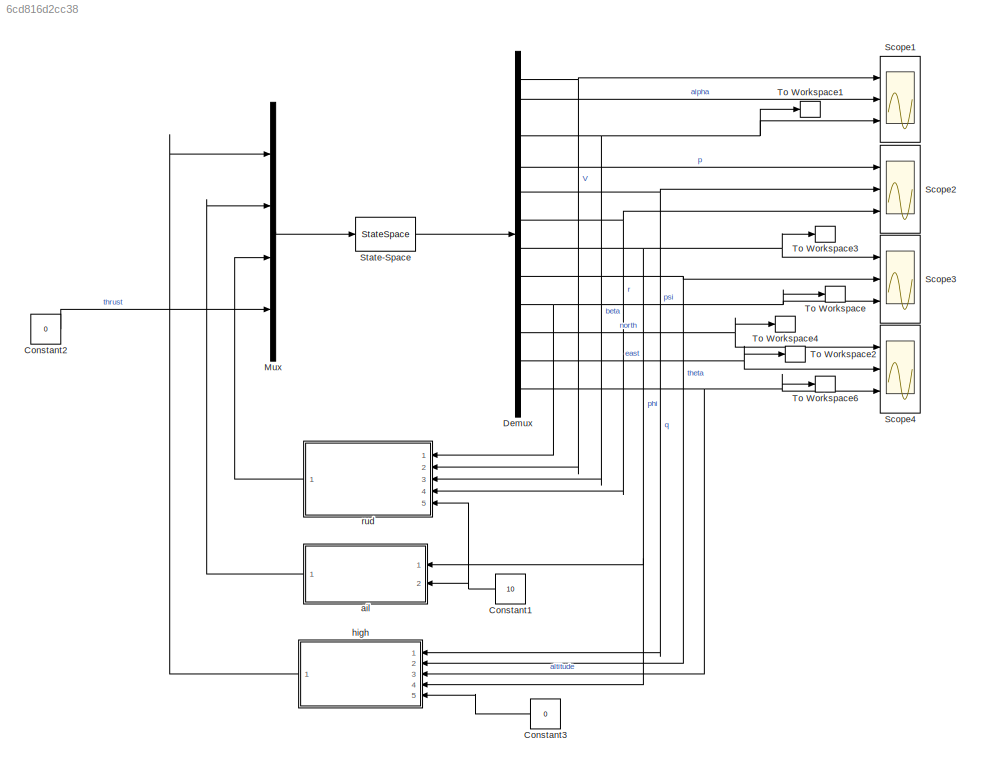
MODEL slx_6cd816d2cc38
KIND model
CONFIG AbsTol = auto
CONFIG FixedStep = auto
CONFIG MaxStep = auto
CONFIG MinStep = auto
CONFIG RelTol = 1e-3
CONFIG SampleTimeConstraint = Unconstrained
CONFIG Solver = VariableStepAuto
CONFIG SolverMode = Auto
CONFIG SolverName = VariableStepAuto
CONFIG StartTime = 0.0
CONFIG StopTime = 2000
BLOCK [Constant] Constant1
  Value = 10
BLOCK [Constant] Constant2
  Value = 0
BLOCK [Constant] Constant3
  Value = 0
BLOCK [Demux] Demux
  DisplayOption = bar
  Outputs = 12
  Ports = [1, 12]
BLOCK [Mux] Mux
  DisplayOption = bar
  Ports = [4, 1]
BLOCK [Scope] Scope1
  NumInputPorts = 3
  Ports = [3]
  ScopeSpecificationString = Simulink.scopes.TimeScopeBlockCfg('CurrentConfiguration', extmgr.ConfigurationSet(extmgr.Configuration('Core','General UI',true),extmgr.Configuration('Core','Source UI',true),extmgr.Configuration('Sources','WiredSimulink',true,'DataLoggingVariableName','yy','DataLoggingSaveFormat','Array','DataLoggingDecimation','1','DataLoggingDecimateData',true),extmgr.Configuration('Visuals','Time Domain',true,...<+2994ch>
BLOCK [Scope] Scope2
  NumInputPorts = 3
  Ports = [3]
  ScopeSpecificationString = Simulink.scopes.TimeScopeBlockCfg('CurrentConfiguration', extmgr.ConfigurationSet(extmgr.Configuration('Core','General UI',true),extmgr.Configuration('Core','Source UI',true),extmgr.Configuration('Sources','WiredSimulink',true,'DataLoggingVariableName','ScopeData2','DataLoggingSaveFormat','StructureWithTime','DataLoggingDecimation','1','DataLoggingDecimateData',true),extmgr.Configuration('Visuals'...<+3049ch>
BLOCK [Scope] Scope3
  NumInputPorts = 3
  Ports = [3]
  ScopeSpecificationString = Simulink.scopes.TimeScopeBlockCfg('CurrentConfiguration', extmgr.ConfigurationSet(extmgr.Configuration('Core','General UI',true),extmgr.Configuration('Core','Source UI',true),extmgr.Configuration('Sources','WiredSimulink',true,'DataLoggingSaveFormat','StructureWithTime','DataLoggingDecimation','1','DataLoggingDecimateData',true),extmgr.Configuration('Visuals','Time Domain',true,'SerializedDisplays...<+3078ch>
BLOCK [Scope] Scope4
  NumInputPorts = 3
  Ports = [3]
  ScopeSpecificationString = Simulink.scopes.TimeScopeBlockCfg('CurrentConfiguration', extmgr.ConfigurationSet(extmgr.Configuration('Core','General UI',true),extmgr.Configuration('Core','Source UI',true),extmgr.Configuration('Sources','WiredSimulink',true,'DataLoggingVariableName','ScopeData1','DataLoggingSaveFormat','StructureWithTime','DataLoggingDecimation','1','DataLoggingDecimateData',true),extmgr.Configuration('Visuals'...<+3113ch>
BLOCK [StateSpace] State-Space
  A = A
  B = B
  C = C
  D = D
  Ports = [1, 1]
  X0 = [20 0 0 0 0 0 0 0 0 0 0 0]
BLOCK [ToWorkspace] To Workspace
  FixptAsFi = on
  MaxDataPoints = inf
  Ports = [1]
  SampleTime = -1
  Save2DSignal = 3-D array (concatenate along third dimension)
  SaveFormat = Timeseries
  VariableName = psi
BLOCK [ToWorkspace] To Workspace1
  FixptAsFi = on
  MaxDataPoints = inf
  Ports = [1]
  SampleTime = -1
  Save2DSignal = 3-D array (concatenate along third dimension)
  SaveFormat = Timeseries
  VariableName = beta
BLOCK [ToWorkspace] To Workspace2
  FixptAsFi = on
  MaxDataPoints = inf
  Ports = [1]
  SampleTime = -1
  Save2DSignal = 3-D array (concatenate along third dimension)
  VariableName = east
BLOCK [ToWorkspace] To Workspace3
  FixptAsFi = on
  MaxDataPoints = inf
  Ports = [1]
  SampleTime = -1
  Save2DSignal = 3-D array (concatenate along third dimension)
  SaveFormat = Timeseries
  VariableName = phi
BLOCK [ToWorkspace] To Workspace4
  FixptAsFi = on
  MaxDataPoints = inf
  Ports = [1]
  SampleTime = -1
  Save2DSignal = 3-D array (concatenate along third dimension)
  VariableName = north
BLOCK [ToWorkspace] To Workspace6
  FixptAsFi = on
  MaxDataPoints = inf
  Ports = [1]
  SampleTime = -1
  Save2DSignal = 3-D array (concatenate along third dimension)
  SaveFormat = Timeseries
  VariableName = altitude
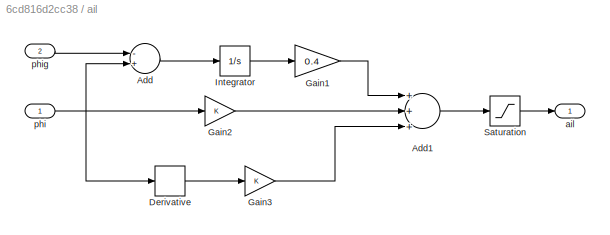
BLOCK [SubSystem] ail
  Ports = [2, 1]
  RequestExecContextInheritance = off
  Variant = off
BLOCK [Sum] ail/Add
  InputSameDT = off
  Inputs = -+
  OutDataTypeStr = Inherit: Inherit via internal rule
  Ports = [2, 1]
  SaturateOnIntegerOverflow = off
BLOCK [Sum] ail/Add1
  InputSameDT = off
  Inputs = +++
  OutDataTypeStr = Inherit: Inherit via internal rule
  Ports = [3, 1]
  SaturateOnIntegerOverflow = off
BLOCK [Derivative] ail/Derivative
BLOCK [Gain] ail/Gain1
  Gain = 0.4
  OutDataTypeStr = Inherit: Inherit via internal rule
  ParamDataTypeStr = Inherit: Inherit via internal rule
  SaturateOnIntegerOverflow = off
BLOCK [Gain] ail/Gain2
  OutDataTypeStr = Inherit: Inherit via internal rule
  ParamDataTypeStr = Inherit: Inherit via internal rule
  SaturateOnIntegerOverflow = off
BLOCK [Gain] ail/Gain3
  OutDataTypeStr = Inherit: Inherit via internal rule
  ParamDataTypeStr = Inherit: Inherit via internal rule
  SaturateOnIntegerOverflow = off
BLOCK [Integrator] ail/Integrator
  Ports = [1, 1]
BLOCK [Saturate] ail/Saturation
  InputPortMap = u0
  LowerLimit = -12
  Ports = [1, 1]
  UpperLimit = 12
BLOCK [Outport] ail/ail
  IconDisplay = Port number
BLOCK [Inport] ail/phi
  IconDisplay = Port number
BLOCK [Inport] ail/phig
  IconDisplay = Port number
  Port = 2
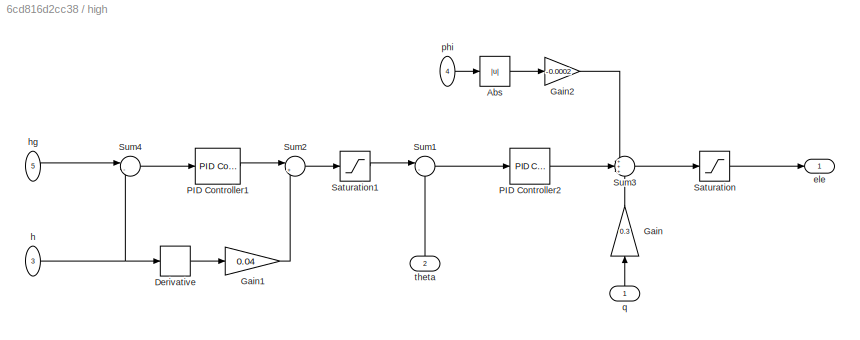
BLOCK [SubSystem] high 
  Ports = [5, 1]
  RequestExecContextInheritance = off
  Variant = off
BLOCK [Abs] high /Abs
  SaturateOnIntegerOverflow = off
BLOCK [Derivative] high /Derivative
BLOCK [Gain] high /Gain
  Gain = 0.3
  OutDataTypeStr = Inherit: Inherit via internal rule
  ParamDataTypeStr = Inherit: Inherit via internal rule
  SaturateOnIntegerOverflow = off
BLOCK [Gain] high /Gain1
  Gain = 0.04
  OutDataTypeStr = Inherit: Inherit via internal rule
  ParamDataTypeStr = Inherit: Inherit via internal rule
  SaturateOnIntegerOverflow = off
BLOCK [Gain] high /Gain2
  Gain = -0.0002
  OutDataTypeStr = Inherit: Inherit via internal rule
  ParamDataTypeStr = Inherit: Inherit via internal rule
  SaturateOnIntegerOverflow = off
BLOCK [Reference] high /PID Controller1  REF=simulink/Continuous/PID Controller
  Ports = [1, 1]
  SourceBlock = simulink/Continuous/PID Controller
  SourceType = PID 1dof
BLOCK [Reference] high /PID Controller2  REF=simulink/Continuous/PID Controller
  Ports = [1, 1]
  SourceBlock = simulink/Continuous/PID Controller
  SourceType = PID 1dof
BLOCK [Saturate] high /Saturation
  InputPortMap = u0
  LowerLimit = -9
  Ports = [1, 1]
  UpperLimit = 9
BLOCK [Saturate] high /Saturation1
  InputPortMap = u0
  LowerLimit = -15
  Ports = [1, 1]
  UpperLimit = 15
BLOCK [Sum] high /Sum1
  IconShape = round
  InputSameDT = off
  Inputs = |-+
  OutDataTypeStr = Inherit: Inherit via internal rule
  Ports = [2, 1]
  SaturateOnIntegerOverflow = off
BLOCK [Sum] high /Sum2
  IconShape = round
  InputSameDT = off
  Inputs = |++
  OutDataTypeStr = Inherit: Inherit via internal rule
  Ports = [2, 1]
  SaturateOnIntegerOverflow = off
BLOCK [Sum] high /Sum3
  IconShape = round
  InputSameDT = off
  Inputs = +++
  OutDataTypeStr = Inherit: Inherit via internal rule
  Ports = [3, 1]
  SaturateOnIntegerOverflow = off
BLOCK [Sum] high /Sum4
  IconShape = round
  InputSameDT = off
  Inputs = |-+
  OutDataTypeStr = Inherit: Inherit via internal rule
  Ports = [2, 1]
  SaturateOnIntegerOverflow = off
BLOCK [Outport] high /ele
  IconDisplay = Port number
BLOCK [Inport] high /h
  IconDisplay = Port number
  Port = 3
BLOCK [Inport] high /hg
  IconDisplay = Port number
  Port = 5
BLOCK [Inport] high /phi
  IconDisplay = Port number
  Port = 4
BLOCK [Inport] high /q
  IconDisplay = Port number
BLOCK [Inport] high /theta
  IconDisplay = Port number
  Port = 2
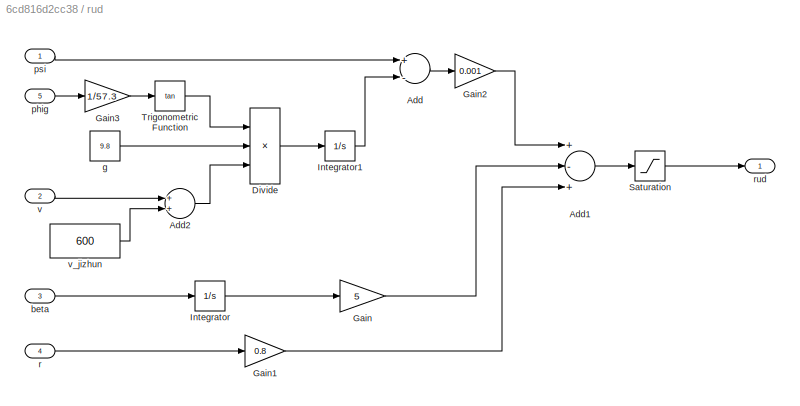
BLOCK [SubSystem] rud
  Ports = [5, 1]
  RequestExecContextInheritance = off
  Variant = off
BLOCK [Sum] rud/Add
  InputSameDT = off
  Inputs = +-
  OutDataTypeStr = Inherit: Inherit via internal rule
  Ports = [2, 1]
  SaturateOnIntegerOverflow = off
BLOCK [Sum] rud/Add1
  InputSameDT = off
  Inputs = +-+
  OutDataTypeStr = Inherit: Inherit via internal rule
  Ports = [3, 1]
  SaturateOnIntegerOverflow = off
BLOCK [Sum] rud/Add2
  InputSameDT = off
  OutDataTypeStr = Inherit: Inherit via internal rule
  Ports = [2, 1]
  SaturateOnIntegerOverflow = off
BLOCK [Product] rud/Divide
  InputSameDT = off
  Inputs = **/
  OutDataTypeStr = Inherit: Inherit via internal rule
  Ports = [3, 1]
  RndMeth = Floor
  SaturateOnIntegerOverflow = off
BLOCK [Gain] rud/Gain
  Gain = 5
  OutDataTypeStr = Inherit: Inherit via internal rule
  ParamDataTypeStr = Inherit: Inherit via internal rule
  SaturateOnIntegerOverflow = off
BLOCK [Gain] rud/Gain1
  Gain = 0.8
  OutDataTypeStr = Inherit: Inherit via internal rule
  ParamDataTypeStr = Inherit: Inherit via internal rule
  SaturateOnIntegerOverflow = off
BLOCK [Gain] rud/Gain2
  Gain = 0.001
  OutDataTypeStr = Inherit: Inherit via internal rule
  ParamDataTypeStr = Inherit: Inherit via internal rule
  SaturateOnIntegerOverflow = off
BLOCK [Gain] rud/Gain3
  Gain = 1/57.3
  OutDataTypeStr = Inherit: Inherit via internal rule
  ParamDataTypeStr = Inherit: Inherit via internal rule
  SaturateOnIntegerOverflow = off
BLOCK [Integrator] rud/Integrator
  Ports = [1, 1]
BLOCK [Integrator] rud/Integrator1
  Ports = [1, 1]
BLOCK [Saturate] rud/Saturation
  InputPortMap = u0
  LowerLimit = -8
  Ports = [1, 1]
  UpperLimit = 8
BLOCK [Trigonometry] rud/Trigonometric Function
  Operator = tan
  Ports = [1, 1]
BLOCK [Inport] rud/beta
  IconDisplay = Port number
  Port = 3
BLOCK [Constant] rud/g
  Value = 9.8
BLOCK [Inport] rud/phig
  IconDisplay = Port number
  Port = 5
BLOCK [Inport] rud/psi
  IconDisplay = Port number
BLOCK [Inport] rud/r
  IconDisplay = Port number
  Port = 4
BLOCK [Outport] rud/rud
  IconDisplay = Port number
BLOCK [Inport] rud/v
  IconDisplay = Port number
  Port = 2
BLOCK [Constant] rud/v_jizhun
  Value = 600
NET Constant1:1 -> ail:2, rud:5
LINE Constant2:1 -> Mux:4
LINE Constant3:1 -> high :5
NET Demux:1 -> Scope1:1, rud:2
NET Demux:10 -> Scope4:1, To Workspace4:1
NET Demux:11 -> Scope4:2, To Workspace2:1
NET Demux:12 -> Scope4:3, To Workspace6:1, high :3
LINE Demux:2 -> Scope1:2
NET Demux:3 -> Scope1:3, To Workspace1:1, rud:3
LINE Demux:4 -> Scope2:1
NET Demux:5 -> Scope2:2, high :1
NET Demux:6 -> Scope2:3, rud:4
NET Demux:7 -> Scope3:1, To Workspace3:1, ail:1, high :4
NET Demux:8 -> Scope3:2, high :2
NET Demux:9 -> Scope3:3, To Workspace:1, rud:1
LINE Mux:1 -> State-Space:1
LINE State-Space:1 -> Demux:1
LINE ail/Add1:1 -> ail/Saturation:1
LINE ail/Add:1 -> ail/Integrator:1
LINE ail/Derivative:1 -> ail/Gain3:1
LINE ail/Gain1:1 -> ail/Add1:1
LINE ail/Gain2:1 -> ail/Add1:2
LINE ail/Gain3:1 -> ail/Add1:3
LINE ail/Integrator:1 -> ail/Gain1:1
LINE ail/Saturation:1 -> ail/ail:1
NET ail/phi:1 -> ail/Add:2, ail/Derivative:1, ail/Gain2:1
LINE ail/phig:1 -> ail/Add:1
LINE ail:1 -> Mux:2
LINE high /Abs:1 -> high /Gain2:1
LINE high /Derivative:1 -> high /Gain1:1
LINE high /Gain1:1 -> high /Sum2:2
LINE high /Gain2:1 -> high /Sum3:1
LINE high /Gain:1 -> high /Sum3:3
LINE high /PID Controller1:1 -> high /Sum2:1
LINE high /PID Controller2:1 -> high /Sum3:2
LINE high /Saturation1:1 -> high /Sum1:1
LINE high /Saturation:1 -> high /ele:1
LINE high /Sum1:1 -> high /PID Controller2:1
LINE high /Sum2:1 -> high /Saturation1:1
LINE high /Sum3:1 -> high /Saturation:1
LINE high /Sum4:1 -> high /PID Controller1:1
NET high /h:1 -> high /Derivative:1, high /Sum4:2
LINE high /hg:1 -> high /Sum4:1
LINE high /phi:1 -> high /Abs:1
LINE high /q:1 -> high /Gain:1
LINE high /theta:1 -> high /Sum1:2
LINE high :1 -> Mux:1
LINE rud/Add1:1 -> rud/Saturation:1
LINE rud/Add2:1 -> rud/Divide:3
LINE rud/Add:1 -> rud/Gain2:1
LINE rud/Divide:1 -> rud/Integrator1:1
LINE rud/Gain1:1 -> rud/Add1:3
LINE rud/Gain2:1 -> rud/Add1:1
LINE rud/Gain3:1 -> rud/Trigonometric Function:1
LINE rud/Gain:1 -> rud/Add1:2
LINE rud/Integrator1:1 -> rud/Add:2
LINE rud/Integrator:1 -> rud/Gain:1
LINE rud/Saturation:1 -> rud/rud:1
LINE rud/Trigonometric Function:1 -> rud/Divide:1
LINE rud/beta:1 -> rud/Integrator:1
LINE rud/g:1 -> rud/Divide:2
LINE rud/phig:1 -> rud/Gain3:1
LINE rud/psi:1 -> rud/Add:1
LINE rud/r:1 -> rud/Gain1:1
LINE rud/v:1 -> rud/Add2:1
LINE rud/v_jizhun:1 -> rud/Add2:2
LINE rud:1 -> Mux:3
note: NET lines group one-source signal fan-out (src -> all destinations, sorted); 1:1 wires keep LINE
